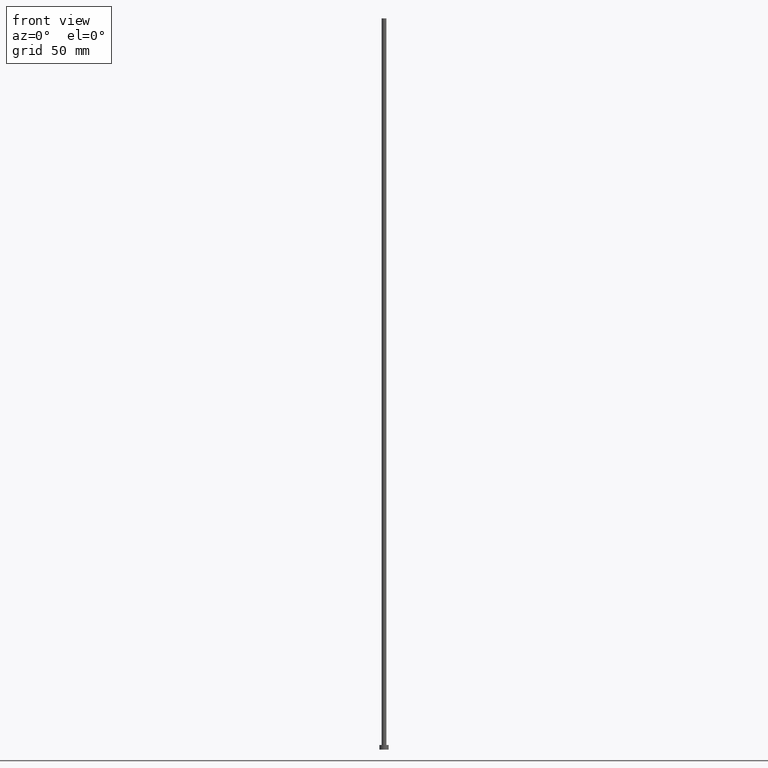
[diagram: clean part render]
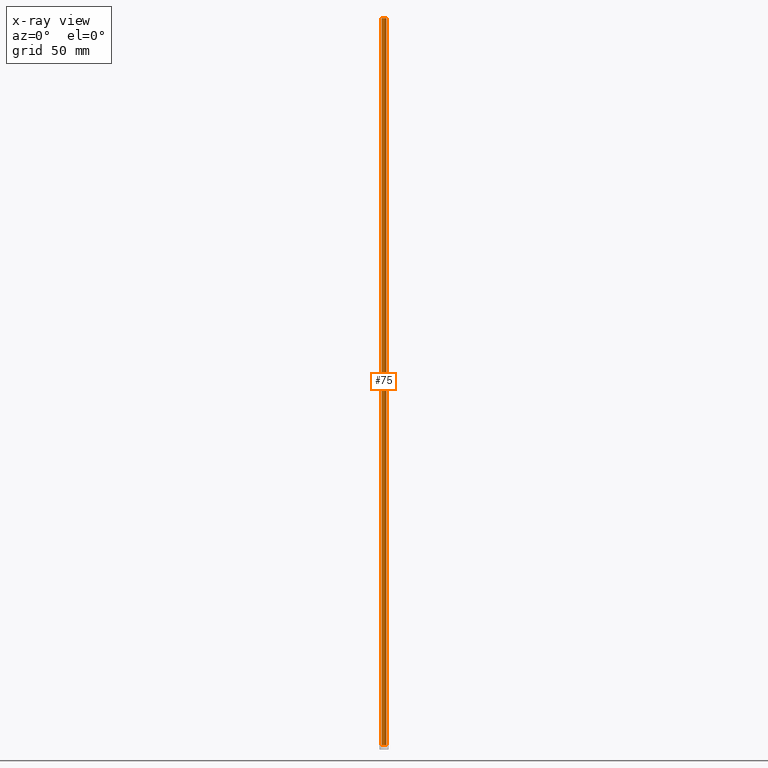
[diagram: x-ray — body ghosted, one internal face saturated and labeled with its STEP entity id]
A machine part, front view, then the same camera in x-ray: the body is ghosted and one INTERNAL B-rep face — a face not visible from any outside direction — is saturated and labeled: STEP entity #75.
In plain terms, the highlighted cylindrical surface (edge-blend (fillet) strip) has radius 1 mm, axis along (-0, -0, -1).
Its self-contained STEP definition (entity closure, byte-faithful):
#2 = CARTESIAN_POINT ( 'NONE',  ( 0.000000000000000000, 0.000000000000000000, 315.0000000000000000 ) ) ;
#8 = CARTESIAN_POINT ( 'NONE',  ( -1.000000000000000000, 0.000000000000000000, 2.000000000000000000 ) ) ;
#20 = DIRECTION ( 'NONE',  ( -0.000000000000000000, -0.000000000000000000, -1.000000000000000000 ) ) ;
#26 = AXIS2_PLACEMENT_3D ( 'NONE', #244, #193, #227 ) ;
#28 = ORIENTED_EDGE ( 'NONE', *, *, #128, .T. ) ;
#31 = DIRECTION ( 'NONE',  ( -0.000000000000000000, -0.000000000000000000, -1.000000000000000000 ) ) ;
#33 = VERTEX_POINT ( 'NONE', #173 ) ;
#34 = AXIS2_PLACEMENT_3D ( 'NONE', #2, #20, #127 ) ;
#36 = CARTESIAN_POINT ( 'NONE',  ( 1.000000000000000000, 1.224646799147353207E-16, 2.000000000000000000 ) ) ;
#44 = FACE_OUTER_BOUND ( 'NONE', #255, .T. ) ;
#62 = CIRCLE ( 'NONE', #124, 1.000000000000000000 ) ;
#67 = EDGE_CURVE ( 'NONE', #192, #243, #157, .T. ) ;
#74 = DIRECTION ( 'NONE',  ( 0.000000000000000000, 0.000000000000000000, 1.000000000000000000 ) ) ;
#75 = ADVANCED_FACE ( 'NONE', ( #44 ), #87, .T. ) ;
#81 = VECTOR ( 'NONE', #31, 1000.000000000000000 ) ;
#82 = ORIENTED_EDGE ( 'NONE', *, *, #211, .F. ) ;
#87 = CYLINDRICAL_SURFACE ( 'NONE', #34, 1.000000000000000000 ) ;
#90 = CARTESIAN_POINT ( 'NONE',  ( 1.000000000000000000, 1.224646799147353207E-16, 315.0000000000000000 ) ) ;
#91 = VECTOR ( 'NONE', #254, 1000.000000000000000 ) ;
#97 = VERTEX_POINT ( 'NONE', #36 ) ;
#99 = ORIENTED_EDGE ( 'NONE', *, *, #67, .F. ) ;
#110 = CIRCLE ( 'NONE', #26, 1.000000000000000000 ) ;
#124 = AXIS2_PLACEMENT_3D ( 'NONE', #223, #74, #167 ) ;
#127 = DIRECTION ( 'NONE',  ( -1.000000000000000000, 0.000000000000000000, 0.000000000000000000 ) ) ;
#128 = EDGE_CURVE ( 'NONE', #97, #243, #62, .T. ) ;
#157 = LINE ( 'NONE', #181, #91 ) ;
#167 = DIRECTION ( 'NONE',  ( 1.000000000000000000, 0.000000000000000000, 0.000000000000000000 ) ) ;
#173 = CARTESIAN_POINT ( 'NONE',  ( 1.000000000000000000, 1.224646799147353207E-16, 315.0000000000000000 ) ) ;
#181 = CARTESIAN_POINT ( 'NONE',  ( -1.000000000000000000, 0.000000000000000000, 315.0000000000000000 ) ) ;
#185 = CARTESIAN_POINT ( 'NONE',  ( -1.000000000000000000, 0.000000000000000000, 315.0000000000000000 ) ) ;
#187 = LINE ( 'NONE', #90, #81 ) ;
#192 = VERTEX_POINT ( 'NONE', #185 ) ;
#193 = DIRECTION ( 'NONE',  ( 0.000000000000000000, 0.000000000000000000, 1.000000000000000000 ) ) ;
#194 = EDGE_CURVE ( 'NONE', #33, #97, #187, .T. ) ;
#211 = EDGE_CURVE ( 'NONE', #33, #192, #110, .T. ) ;
#223 = CARTESIAN_POINT ( 'NONE',  ( 0.000000000000000000, 0.000000000000000000, 2.000000000000000000 ) ) ;
#227 = DIRECTION ( 'NONE',  ( 1.000000000000000000, 0.000000000000000000, 0.000000000000000000 ) ) ;
#243 = VERTEX_POINT ( 'NONE', #8 ) ;
#244 = CARTESIAN_POINT ( 'NONE',  ( 0.000000000000000000, 0.000000000000000000, 315.0000000000000000 ) ) ;
#250 = ORIENTED_EDGE ( 'NONE', *, *, #194, .T. ) ;
#254 = DIRECTION ( 'NONE',  ( -0.000000000000000000, -0.000000000000000000, -1.000000000000000000 ) ) ;
#255 = EDGE_LOOP ( 'NONE', ( #82, #250, #28, #99 ) ) ;